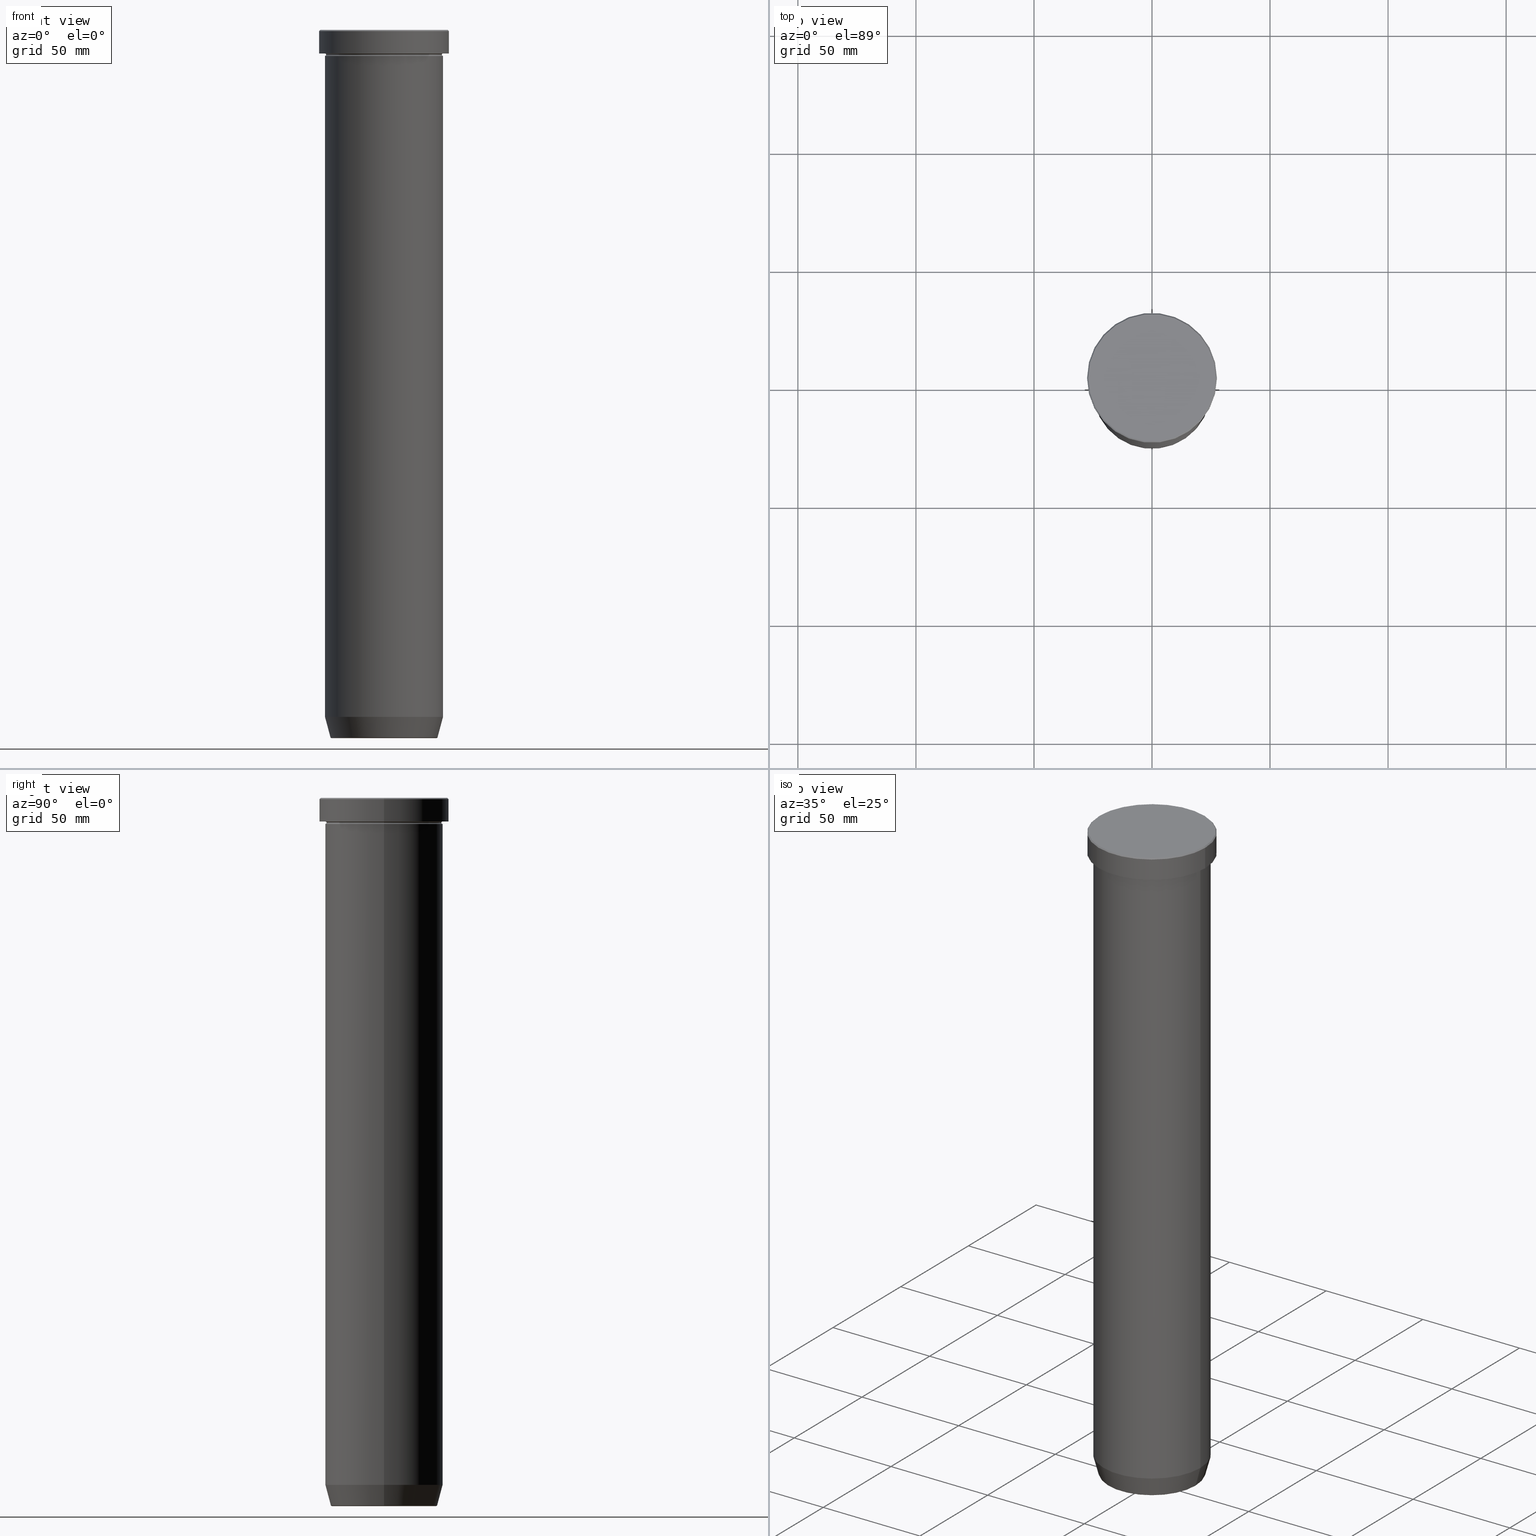
[diagram: canonical four-view strip — front | top / right | iso, engineering-drawing reading convention]
A machine part, canonical four-view strip (front | top / right | iso — engineering-drawing reading convention). The complete STEP part file that produces these views, byte-faithful:
ISO-10303-21;
HEADER;
FILE_DESCRIPTION (( 'STEP AP203' ),
    '1' );
FILE_NAME ('7b36.STEP',
    '2024-01-02T17:32:23',
    ( '' ),
    ( '' ),
    'SwSTEP 2.0',
    'SolidWorks 2019',
    '' );
FILE_SCHEMA (( 'CONFIG_CONTROL_DESIGN' ));
ENDSEC;

DATA;
#1 = VECTOR ( 'NONE', #120, 1000.000000000000000 ) ;
#2 = ORIENTED_EDGE ( 'NONE', *, *, #506, .T. ) ;
#3 = DIRECTION ( 'NONE',  ( 0.000000000000000000, -0.000000000000000000, 1.000000000000000000 ) ) ;
#4 = DESIGN_CONTEXT ( 'detailed design', #411, 'design' ) ;
#5 = CARTESIAN_POINT ( 'NONE',  ( 22.58845726811988897, 0.000000000000000000, -300.0000000000000000 ) ) ;
#6 = VERTEX_POINT ( 'NONE', #210 ) ;
#7 = DIRECTION ( 'NONE',  ( -0.000000000000000000, -0.000000000000000000, 1.000000000000000000 ) ) ;
#8 = CARTESIAN_POINT ( 'NONE',  ( 0.000000000000000000, 0.000000000000000000, -300.0000000000000000 ) ) ;
#9 = PERSON ( 'NEUR�EN�', 'NEUR�EN�', 'NEUR�EN�', ('NEUR�EN�'), ('NEUR�EN�'), ('NEUR�EN�') ) ;
#10 = CARTESIAN_POINT ( 'NONE',  ( -25.00000000000000000, 3.061616997868383043E-15, -291.0000000000000000 ) ) ;
#11 = CIRCLE ( 'NONE', #142, 25.00000000000000000 ) ;
#12 = ORIENTED_EDGE ( 'NONE', *, *, #169, .F. ) ;
#13 = AXIS2_PLACEMENT_3D ( 'NONE', #182, #138, #311 ) ;
#14 = PRODUCT ( '7b36', '7b36', '', ( #493 ) ) ;
#15 = APPROVAL_DATE_TIME ( #598, #481 ) ;
#16 = EDGE_CURVE ( 'NONE', #34, #361, #244, .T. ) ;
#17 = CIRCLE ( 'NONE', #319, 25.00000000000000000 ) ;
#18 = FACE_OUTER_BOUND ( 'NONE', #70, .T. ) ;
#19 = ADVANCED_FACE ( 'NONE', ( #101 ), #521, .F. ) ;
#20 = ORIENTED_EDGE ( 'NONE', *, *, #316, .F. ) ;
#21 = CARTESIAN_POINT ( 'NONE',  ( 22.20479377413040822, 0.000000000000000000, -299.5000000000000000 ) ) ;
#22 = AXIS2_PLACEMENT_3D ( 'NONE', #230, #83, #456 ) ;
#23 = ORIENTED_EDGE ( 'NONE', *, *, #123, .T. ) ;
#24 = CIRCLE ( 'NONE', #195, 25.00000000000000000 ) ;
#25 = CIRCLE ( 'NONE', #51, 22.68775668727494477 ) ;
#26 = APPROVAL_PERSON_ORGANIZATION ( #143, #481, #39 ) ;
#27 = ORIENTED_EDGE ( 'NONE', *, *, #433, .T. ) ;
#28 = CARTESIAN_POINT ( 'NONE',  ( 0.000000000000000000, 0.000000000000000000, -299.5000000000000000 ) ) ;
#29 = FACE_OUTER_BOUND ( 'NONE', #165, .T. ) ;
#30 = CARTESIAN_POINT ( 'NONE',  ( 0.000000000000000000, 0.000000000000000000, -300.0000000000000000 ) ) ;
#31 = DIRECTION ( 'NONE',  ( -1.000000000000000000, 1.224646799147349509E-16, 0.000000000000000000 ) ) ;
#32 = VECTOR ( 'NONE', #538, 1000.000000000000000 ) ;
#33 = PERSON_AND_ORGANIZATION ( #9, #346 ) ;
#34 = VERTEX_POINT ( 'NONE', #470 ) ;
#35 = LINE ( 'NONE', #227, #477 ) ;
#36 = DATE_TIME_ROLE ( 'classification_date' ) ;
#37 = DIRECTION ( 'NONE',  ( 0.000000000000000000, 0.000000000000000000, -1.000000000000000000 ) ) ;
#38 = EDGE_CURVE ( 'NONE', #432, #240, #17, .T. ) ;
#39 = APPROVAL_ROLE ( '' ) ;
#40 = CARTESIAN_POINT ( 'NONE',  ( 27.50000000000000000, 0.000000000000000000, 0.000000000000000000 ) ) ;
#41 =( NAMED_UNIT ( * ) PLANE_ANGLE_UNIT ( ) SI_UNIT ( $, .RADIAN. ) );
#42 = AXIS2_PLACEMENT_3D ( 'NONE', #21, #204, #170 ) ;
#43 = CARTESIAN_POINT ( 'NONE',  ( 25.00000000000000000, 0.000000000000000000, 0.000000000000000000 ) ) ;
#44 = ORIENTED_EDGE ( 'NONE', *, *, #169, .T. ) ;
#45 = DIRECTION ( 'NONE',  ( 1.000000000000000000, 0.000000000000000000, 0.000000000000000000 ) ) ;
#46 = ORIENTED_EDGE ( 'NONE', *, *, #333, .T. ) ;
#47 = FACE_OUTER_BOUND ( 'NONE', #264, .T. ) ;
#48 = APPROVAL_STATUS ( 'not_yet_approved' ) ;
#49 = PLANE ( 'NONE',  #289 ) ;
#50 = EDGE_CURVE ( 'NONE', #171, #387, #73, .T. ) ;
#51 = AXIS2_PLACEMENT_3D ( 'NONE', #495, #400, #454 ) ;
#52 = CALENDAR_DATE ( 2024, 2, 1 ) ;
#53 = CARTESIAN_POINT ( 'NONE',  ( 0.000000000000000000, 3.061616997868383121E-14, -300.0000000000000000 ) ) ;
#54 = DIRECTION ( 'NONE',  ( -0.000000000000000000, -0.000000000000000000, 1.000000000000000000 ) ) ;
#55 = APPROVAL_DATE_TIME ( #285, #313 ) ;
#56 = DIRECTION ( 'NONE',  ( -0.000000000000000000, -0.000000000000000000, 1.000000000000000000 ) ) ;
#57 = ORIENTED_EDGE ( 'NONE', *, *, #183, .F. ) ;
#58 = DIRECTION ( 'NONE',  ( 1.000000000000000000, 0.000000000000000000, 0.000000000000000000 ) ) ;
#59 = ADVANCED_FACE ( 'NONE', ( #404 ), #224, .T. ) ;
#60 = AXIS2_PLACEMENT_3D ( 'NONE', #532, #121, #220 ) ;
#61 = APPROVAL_PERSON_ORGANIZATION ( #518, #313, #473 ) ;
#62 = ORIENTED_EDGE ( 'NONE', *, *, #98, .T. ) ;
#63 = DIRECTION ( 'NONE',  ( 1.000000000000000000, 0.000000000000000000, 0.000000000000000000 ) ) ;
#64 = ORIENTED_EDGE ( 'NONE', *, *, #587, .T. ) ;
#65 = FACE_OUTER_BOUND ( 'NONE', #108, .T. ) ;
#66 = AXIS2_PLACEMENT_3D ( 'NONE', #560, #216, #581 ) ;
#67 = CC_DESIGN_APPROVAL ( #313, ( #585 ) ) ;
#68 = VERTEX_POINT ( 'NONE', #172 ) ;
#69 = CARTESIAN_POINT ( 'NONE',  ( 26.99999999999999289, 3.337162527676537126E-15, 0.000000000000000000 ) ) ;
#70 = EDGE_LOOP ( 'NONE', ( #335, #571, #580, #559 ) ) ;
#71 = CARTESIAN_POINT ( 'NONE',  ( 0.000000000000000000, 0.000000000000000000, -60.00000000000000000 ) ) ;
#72 = CALENDAR_DATE ( 2024, 2, 1 ) ;
#73 = CIRCLE ( 'NONE', #449, 25.00000000000000000 ) ;
#74 = DIRECTION ( 'NONE',  ( -0.000000000000000000, -0.000000000000000000, 1.000000000000000000 ) ) ;
#75 = CARTESIAN_POINT ( 'NONE',  ( 0.000000000000000000, 0.000000000000000000, -299.6294095225512137 ) ) ;
#76 = CARTESIAN_POINT ( 'NONE',  ( 0.000000000000000000, 27.50000000000000000, -9.999999999999998224 ) ) ;
#77 = DIRECTION ( 'NONE',  ( 0.000000000000000000, 0.000000000000000000, -1.000000000000000000 ) ) ;
#78 = AXIS2_PLACEMENT_3D ( 'NONE', #75, #269, #225 ) ;
#79 = CARTESIAN_POINT ( 'NONE',  ( 0.000000000000000000, 0.000000000000000000, 0.000000000000000000 ) ) ;
#80 = DIRECTION ( 'NONE',  ( 0.000000000000000000, 0.000000000000000000, -1.000000000000000000 ) ) ;
#81 = EDGE_CURVE ( 'NONE', #573, #403, #588, .T. ) ;
#82 = CARTESIAN_POINT ( 'NONE',  ( 0.000000000000000000, 0.000000000000000000, -10.49999999999999822 ) ) ;
#83 = DIRECTION ( 'NONE',  ( -0.000000000000000000, -0.000000000000000000, 1.000000000000000000 ) ) ;
#84 = LINE ( 'NONE', #457, #413 ) ;
#85 = DATE_AND_TIME ( #72, #282 ) ;
#86 = FACE_OUTER_BOUND ( 'NONE', #478, .T. ) ;
#87 = ADVANCED_FACE ( 'NONE', ( #148 ), #508, .T. ) ;
#88 = ORIENTED_EDGE ( 'NONE', *, *, #336, .F. ) ;
#89 = CALENDAR_DATE ( 2024, 2, 1 ) ;
#90 = CIRCLE ( 'NONE', #368, 27.50000000000000000 ) ;
#91 = DIRECTION ( 'NONE',  ( -1.000000000000000000, 0.000000000000000000, -0.000000000000000000 ) ) ;
#92 = CARTESIAN_POINT ( 'NONE',  ( 0.000000000000000000, 0.000000000000000000, -9.999999999999998224 ) ) ;
#93 = ADVANCED_FACE ( 'NONE', ( #258 ), #352, .T. ) ;
#94 = ADVANCED_FACE ( 'NONE', ( #18 ), #137, .T. ) ;
#95 = CYLINDRICAL_SURFACE ( 'NONE', #397, 25.00000000000000000 ) ;
#96 = ADVANCED_FACE ( 'NONE', ( #105 ), #363, .T. ) ;
#97 = CARTESIAN_POINT ( 'NONE',  ( 25.00000000000000000, 3.061616997868383043E-15, -10.49999999999999822 ) ) ;
#98 = EDGE_CURVE ( 'NONE', #432, #484, #250, .T. ) ;
#99 = DIRECTION ( 'NONE',  ( 0.000000000000000000, -0.000000000000000000, 1.000000000000000000 ) ) ;
#100 = AXIS2_PLACEMENT_3D ( 'NONE', #434, #294, #58 ) ;
#101 = FACE_OUTER_BOUND ( 'NONE', #300, .T. ) ;
#102 = CARTESIAN_POINT ( 'NONE',  ( 0.000000000000000000, 0.000000000000000000, -291.0000000000000000 ) ) ;
#103 = EDGE_LOOP ( 'NONE', ( #348, #492 ) ) ;
#104 = APPROVAL_STATUS ( 'not_yet_approved' ) ;
#105 = FACE_OUTER_BOUND ( 'NONE', #563, .T. ) ;
#106 = CARTESIAN_POINT ( 'NONE',  ( 0.000000000000000000, 0.000000000000000000, 0.000000000000000000 ) ) ;
#107 = EDGE_CURVE ( 'NONE', #167, #387, #205, .T. ) ;
#108 = EDGE_LOOP ( 'NONE', ( #213, #339, #431, #398 ) ) ;
#109 = AXIS2_PLACEMENT_3D ( 'NONE', #428, #200, #378 ) ;
#110 = ORIENTED_EDGE ( 'NONE', *, *, #489, .T. ) ;
#111 = AXIS2_PLACEMENT_3D ( 'NONE', #562, #197, #556 ) ;
#112 = EDGE_CURVE ( 'NONE', #240, #432, #125, .T. ) ;
#113 = DIRECTION ( 'NONE',  ( -0.000000000000000000, -0.000000000000000000, 1.000000000000000000 ) ) ;
#114 = COORDINATED_UNIVERSAL_TIME_OFFSET ( 1, 0, .AHEAD. ) ;
#115 = CIRCLE ( 'NONE', #246, 27.50000000000000000 ) ;
#116 = CARTESIAN_POINT ( 'NONE',  ( 0.000000000000000000, 0.000000000000000000, -10.49999999999999822 ) ) ;
#117 = CARTESIAN_POINT ( 'NONE',  ( 0.000000000000000000, 0.000000000000000000, -11.00000000000000000 ) ) ;
#118 = ORIENTED_EDGE ( 'NONE', *, *, #553, .F. ) ;
#119 = CARTESIAN_POINT ( 'NONE',  ( -22.58845726811988897, 2.766288189107978730E-15, -300.0000000000000000 ) ) ;
#120 = DIRECTION ( 'NONE',  ( 0.7071067811865426878, 8.659560562354874926E-17, -0.7071067811865524577 ) ) ;
#121 = DIRECTION ( 'NONE',  ( -0.000000000000000000, -0.000000000000000000, 1.000000000000000000 ) ) ;
#122 = MANIFOLD_SOLID_BREP ( 'Zaoblit4', #410 ) ;
#123 = EDGE_CURVE ( 'NONE', #573, #171, #189, .T. ) ;
#124 = DIRECTION ( 'NONE',  ( 1.000000000000000000, 0.000000000000000000, 0.000000000000000000 ) ) ;
#125 = CIRCLE ( 'NONE', #22, 25.00000000000000000 ) ;
#126 = DIRECTION ( 'NONE',  ( -1.000000000000000000, 0.000000000000000000, 0.000000000000000000 ) ) ;
#127 = CIRCLE ( 'NONE', #583, 27.50000000000000000 ) ;
#128 = PRODUCT_DEFINITION_FORMATION_WITH_SPECIFIED_SOURCE ( 'LIBOVOLN�', '', #14, .NOT_KNOWN. ) ;
#129 = COORDINATED_UNIVERSAL_TIME_OFFSET ( 1, 0, .AHEAD. ) ;
#130 = ADVANCED_FACE ( 'NONE', ( #242 ), #49, .F. ) ;
#131 = APPLICATION_PROTOCOL_DEFINITION ( 'international standard', 'config_control_design', 1994, #411 ) ;
#132 = FACE_OUTER_BOUND ( 'NONE', #267, .T. ) ;
#133 = VERTEX_POINT ( 'NONE', #544 ) ;
#134 = COORDINATED_UNIVERSAL_TIME_OFFSET ( 1, 0, .AHEAD. ) ;
#135 = DATE_AND_TIME ( #273, #525 ) ;
#136 = CC_DESIGN_PERSON_AND_ORGANIZATION_ASSIGNMENT ( #270, #500, ( #128 ) ) ;
#137 = TOROIDAL_SURFACE ( 'NONE', #482, 22.20479377413040822, 0.5000000000000000000 ) ;
#138 = DIRECTION ( 'NONE',  ( 0.000000000000000000, 0.000000000000000000, 1.000000000000000000 ) ) ;
#139 = LINE ( 'NONE', #321, #1 ) ;
#140 = EDGE_LOOP ( 'NONE', ( #567, #46, #303, #575 ) ) ;
#141 = DIRECTION ( 'NONE',  ( 1.000000000000000000, 0.000000000000000000, 0.000000000000000000 ) ) ;
#142 = AXIS2_PLACEMENT_3D ( 'NONE', #558, #199, #376 ) ;
#143 = PERSON_AND_ORGANIZATION ( #9, #346 ) ;
#144 = DIRECTION ( 'NONE',  ( -0.000000000000000000, -1.000000000000000000, -0.000000000000000000 ) ) ;
#145 = EDGE_LOOP ( 'NONE', ( #480, #44 ) ) ;
#146 = LINE ( 'NONE', #462, #537 ) ;
#147 = CARTESIAN_POINT ( 'NONE',  ( 24.50000000000000000, 0.000000000000000000, -10.49999999999999822 ) ) ;
#148 = FACE_OUTER_BOUND ( 'NONE', #208, .T. ) ;
#149 = PLANE ( 'NONE',  #459 ) ;
#150 = AXIS2_PLACEMENT_3D ( 'NONE', #8, #439, #203 ) ;
#151 = DIRECTION ( 'NONE',  ( 1.000000000000000000, 0.000000000000000000, 0.000000000000000000 ) ) ;
#152 = DIRECTION ( 'NONE',  ( -1.000000000000000000, 0.000000000000000000, 0.000000000000000000 ) ) ;
#153 = DIRECTION ( 'NONE',  ( -0.000000000000000000, -0.000000000000000000, 1.000000000000000000 ) ) ;
#154 = FACE_OUTER_BOUND ( 'NONE', #531, .T. ) ;
#155 = CIRCLE ( 'NONE', #100, 24.50000000000000000 ) ;
#156 = CARTESIAN_POINT ( 'NONE',  ( 0.000000000000000000, 0.000000000000000000, -11.00000000000000000 ) ) ;
#157 = DIRECTION ( 'NONE',  ( -0.000000000000000000, -0.000000000000000000, 1.000000000000000000 ) ) ;
#158 = ADVANCED_FACE ( 'NONE', ( #417 ), #211, .F. ) ;
#159 = FACE_OUTER_BOUND ( 'NONE', #302, .T. ) ;
#160 = ORIENTED_EDGE ( 'NONE', *, *, #523, .F. ) ;
#161 = ORIENTED_EDGE ( 'NONE', *, *, #192, .F. ) ;
#162 = EDGE_CURVE ( 'NONE', #167, #34, #291, .T. ) ;
#163 = APPLICATION_CONTEXT ( 'configuration controlled 3d designs of mechanical parts and assemblies' ) ;
#164 = TOROIDAL_SURFACE ( 'NONE', #271, 25.00000000000000000, 0.5000000000000000000 ) ;
#165 = EDGE_LOOP ( 'NONE', ( #118, #594, #64, #332 ) ) ;
#166 = ADVANCED_FACE ( 'NONE', ( #132 ), #590, .T. ) ;
#167 = VERTEX_POINT ( 'NONE', #497 ) ;
#168 = DIRECTION ( 'NONE',  ( 0.000000000000000000, 0.000000000000000000, -1.000000000000000000 ) ) ;
#169 = EDGE_CURVE ( 'NONE', #328, #330, #458, .T. ) ;
#170 = DIRECTION ( 'NONE',  ( 0.000000000000000000, 0.000000000000000000, -1.000000000000000000 ) ) ;
#171 = VERTEX_POINT ( 'NONE', #469 ) ;
#172 = CARTESIAN_POINT ( 'NONE',  ( 27.50000000000000000, 0.000000000000000000, -9.999999999999998224 ) ) ;
#173 = ORIENTED_EDGE ( 'NONE', *, *, #343, .T. ) ;
#174 = DIRECTION ( 'NONE',  ( -1.000000000000000000, 0.000000000000000000, 0.000000000000000000 ) ) ;
#175 = AXIS2_PLACEMENT_3D ( 'NONE', #262, #196, #370 ) ;
#176 = DIRECTION ( 'NONE',  ( 1.000000000000000000, 0.000000000000000000, 0.000000000000000000 ) ) ;
#177 = VERTEX_POINT ( 'NONE', #570 ) ;
#178 = PERSON_AND_ORGANIZATION ( #9, #346 ) ;
#179 = PERSON_AND_ORGANIZATION ( #9, #346 ) ;
#180 = DIRECTION ( 'NONE',  ( -0.000000000000000000, -0.000000000000000000, 1.000000000000000000 ) ) ;
#181 = LINE ( 'NONE', #119, #395 ) ;
#182 = CARTESIAN_POINT ( 'NONE',  ( 0.000000000000000000, 0.000000000000000000, 0.000000000000000000 ) ) ;
#183 = EDGE_CURVE ( 'NONE', #361, #34, #534, .T. ) ;
#184 = CARTESIAN_POINT ( 'NONE',  ( 0.000000000000000000, 0.000000000000000000, 0.000000000000000000 ) ) ;
#185 = CIRCLE ( 'NONE', #238, 0.5000000000000004441 ) ;
#186 = DIRECTION ( 'NONE',  ( -0.000000000000000000, -0.000000000000000000, 1.000000000000000000 ) ) ;
#187 = CARTESIAN_POINT ( 'NONE',  ( -25.00000000000000000, 0.000000000000000000, -10.49999999999999822 ) ) ;
#188 = ORIENTED_EDGE ( 'NONE', *, *, #333, .F. ) ;
#189 = LINE ( 'NONE', #43, #466 ) ;
#190 = ORIENTED_EDGE ( 'NONE', *, *, #523, .T. ) ;
#191 = CARTESIAN_POINT ( 'NONE',  ( 25.00000000000000000, 3.061616997868383043E-15, -9.999999999999998224 ) ) ;
#192 = EDGE_CURVE ( 'NONE', #256, #177, #90, .T. ) ;
#193 = DIRECTION ( 'NONE',  ( -0.000000000000000000, -0.000000000000000000, 1.000000000000000000 ) ) ;
#194 = DIRECTION ( 'NONE',  ( 1.000000000000000000, 0.000000000000000000, 0.000000000000000000 ) ) ;
#195 = AXIS2_PLACEMENT_3D ( 'NONE', #446, #193, #141 ) ;
#196 = DIRECTION ( 'NONE',  ( -0.000000000000000000, -0.000000000000000000, 1.000000000000000000 ) ) ;
#197 = DIRECTION ( 'NONE',  ( 0.000000000000000000, -1.000000000000000000, 0.000000000000000000 ) ) ;
#198 = UNCERTAINTY_MEASURE_WITH_UNIT (LENGTH_MEASURE( 1.000000000000000082E-05 ), #362, 'distance_accuracy_value', 'NONE');
#199 = DIRECTION ( 'NONE',  ( -0.000000000000000000, -0.000000000000000000, 1.000000000000000000 ) ) ;
#200 = DIRECTION ( 'NONE',  ( -0.000000000000000000, -0.000000000000000000, 1.000000000000000000 ) ) ;
#201 = CARTESIAN_POINT ( 'NONE',  ( 0.000000000000000000, 0.000000000000000000, 0.000000000000000000 ) ) ;
#202 = ORIENTED_EDGE ( 'NONE', *, *, #320, .T. ) ;
#203 = DIRECTION ( 'NONE',  ( 1.000000000000000000, 0.000000000000000000, 0.000000000000000000 ) ) ;
#204 = DIRECTION ( 'NONE',  ( 0.000000000000000000, -1.000000000000000000, 0.000000000000000000 ) ) ;
#205 = CIRCLE ( 'NONE', #382, 0.5000000000000004441 ) ;
#206 = CIRCLE ( 'NONE', #66, 22.20479377413040822 ) ;
#207 = PERSON_AND_ORGANIZATION ( #9, #346 ) ;
#208 = EDGE_LOOP ( 'NONE', ( #249, #472, #62, #507 ) ) ;
#209 = ORIENTED_EDGE ( 'NONE', *, *, #424, .F. ) ;
#210 = CARTESIAN_POINT ( 'NONE',  ( -25.00000000000000000, 3.061616997868383043E-15, -60.00000000000000000 ) ) ;
#211 = TOROIDAL_SURFACE ( 'NONE', #541, 25.00000000000000000, 0.5000000000000000000 ) ;
#212 = AXIS2_PLACEMENT_3D ( 'NONE', #223, #37, #406 ) ;
#213 = ORIENTED_EDGE ( 'NONE', *, *, #325, .F. ) ;
#214 = APPROVAL_PERSON_ORGANIZATION ( #33, #440, #409 ) ;
#215 = ORIENTED_EDGE ( 'NONE', *, *, #388, .T. ) ;
#216 = DIRECTION ( 'NONE',  ( 0.000000000000000000, 0.000000000000000000, -1.000000000000000000 ) ) ;
#217 = CC_DESIGN_PERSON_AND_ORGANIZATION_ASSIGNMENT ( #178, #529, ( #585 ) ) ;
#218 = CARTESIAN_POINT ( 'NONE',  ( -22.68775668727494477, 2.920032929279452187E-15, -299.6294095225512137 ) ) ;
#219 = ORIENTED_EDGE ( 'NONE', *, *, #437, .F. ) ;
#220 = DIRECTION ( 'NONE',  ( 1.000000000000000000, 0.000000000000000000, 0.000000000000000000 ) ) ;
#221 = AXIS2_PLACEMENT_3D ( 'NONE', #97, #257, #514 ) ;
#222 = EDGE_CURVE ( 'NONE', #133, #432, #327, .T. ) ;
#223 = CARTESIAN_POINT ( 'NONE',  ( 0.000000000000000000, 0.000000000000000000, 0.000000000000000000 ) ) ;
#224 = PLANE ( 'NONE',  #391 ) ;
#225 = DIRECTION ( 'NONE',  ( -1.000000000000000000, 0.000000000000000000, 0.000000000000000000 ) ) ;
#226 = DIRECTION ( 'NONE',  ( -1.000000000000000000, 0.000000000000000000, -0.000000000000000000 ) ) ;
#227 = CARTESIAN_POINT ( 'NONE',  ( -25.00000000000000000, 3.061616997868383043E-15, 0.000000000000000000 ) ) ;
#228 = PERSON_AND_ORGANIZATION ( #9, #346 ) ;
#229 = CC_DESIGN_DATE_AND_TIME_ASSIGNMENT ( #85, #349, ( #539 ) ) ;
#230 = CARTESIAN_POINT ( 'NONE',  ( 0.000000000000000000, 0.000000000000000000, -291.0000000000000000 ) ) ;
#231 = CARTESIAN_POINT ( 'NONE',  ( -26.99999999999999289, 0.000000000000000000, 0.000000000000000000 ) ) ;
#232 = PLANE ( 'NONE',  #405 ) ;
#233 = APPROVAL_DATE_TIME ( #310, #440 ) ;
#234 = CARTESIAN_POINT ( 'NONE',  ( -26.99999999999999289, 0.000000000000000000, 0.000000000000000000 ) ) ;
#235 = DIRECTION ( 'NONE',  ( 0.000000000000000000, 0.000000000000000000, -1.000000000000000000 ) ) ;
#236 = CARTESIAN_POINT ( 'NONE',  ( -22.20479377413040822, 2.748875911406054788E-15, -300.0000000000000000 ) ) ;
#237 = AXIS2_PLACEMENT_3D ( 'NONE', #277, #239, #323 ) ;
#238 = AXIS2_PLACEMENT_3D ( 'NONE', #535, #450, #31 ) ;
#239 = DIRECTION ( 'NONE',  ( -0.000000000000000000, -0.000000000000000000, 1.000000000000000000 ) ) ;
#240 = VERTEX_POINT ( 'NONE', #10 ) ;
#241 = DIRECTION ( 'NONE',  ( 1.000000000000000000, 0.000000000000000000, 0.000000000000000000 ) ) ;
#242 = FACE_OUTER_BOUND ( 'NONE', #453, .T. ) ;
#243 = FACE_BOUND ( 'NONE', #103, .T. ) ;
#244 = CIRCLE ( 'NONE', #578, 25.00000000000000000 ) ;
#245 = DIRECTION ( 'NONE',  ( -0.7071067811865426878, 0.000000000000000000, -0.7071067811865524577 ) ) ;
#246 = AXIS2_PLACEMENT_3D ( 'NONE', #353, #402, #586 ) ;
#247 = EDGE_LOOP ( 'NONE', ( #295, #564 ) ) ;
#248 = EDGE_CURVE ( 'NONE', #387, #171, #444, .T. ) ;
#249 = ORIENTED_EDGE ( 'NONE', *, *, #593, .F. ) ;
#250 = LINE ( 'NONE', #379, #565 ) ;
#251 = PLANE ( 'NONE',  #281 ) ;
#252 = DIRECTION ( 'NONE',  ( 1.000000000000000000, 0.000000000000000000, 0.000000000000000000 ) ) ;
#253 = VERTEX_POINT ( 'NONE', #487 ) ;
#254 = DIRECTION ( 'NONE',  ( -0.000000000000000000, -0.000000000000000000, 1.000000000000000000 ) ) ;
#255 = AXIS2_PLACEMENT_3D ( 'NONE', #582, #180, #176 ) ;
#256 = VERTEX_POINT ( 'NONE', #329 ) ;
#257 = DIRECTION ( 'NONE',  ( -1.224646799147353207E-16, 1.000000000000000000, 0.000000000000000000 ) ) ;
#258 = FACE_OUTER_BOUND ( 'NONE', #140, .T. ) ;
#259 = CYLINDRICAL_SURFACE ( 'NONE', #60, 25.00000000000000000 ) ;
#260 = ORIENTED_EDGE ( 'NONE', *, *, #316, .T. ) ;
#261 = TOROIDAL_SURFACE ( 'NONE', #568, 25.00000000000000000, 0.5000000000000000000 ) ;
#262 = CARTESIAN_POINT ( 'NONE',  ( 0.000000000000000000, 0.000000000000000000, 0.000000000000000000 ) ) ;
#263 = ADVANCED_FACE ( 'NONE', ( #483 ), #574, .T. ) ;
#264 = EDGE_LOOP ( 'NONE', ( #215, #503 ) ) ;
#265 = FACE_OUTER_BOUND ( 'NONE', #519, .T. ) ;
#266 = PERSON_AND_ORGANIZATION_ROLE ( 'creator' ) ;
#267 = EDGE_LOOP ( 'NONE', ( #188, #279, #447, #461 ) ) ;
#268 = DIRECTION ( 'NONE',  ( -0.000000000000000000, -0.000000000000000000, 1.000000000000000000 ) ) ;
#269 = DIRECTION ( 'NONE',  ( -0.000000000000000000, -0.000000000000000000, 1.000000000000000000 ) ) ;
#270 = PERSON_AND_ORGANIZATION ( #9, #346 ) ;
#271 = AXIS2_PLACEMENT_3D ( 'NONE', #360, #80, #547 ) ;
#272 = CC_DESIGN_PERSON_AND_ORGANIZATION_ASSIGNMENT ( #228, #451, ( #14 ) ) ;
#273 = CALENDAR_DATE ( 2024, 2, 1 ) ;
#274 = EDGE_CURVE ( 'NONE', #548, #317, #185, .T. ) ;
#275 = DIRECTION ( 'NONE',  ( 1.000000000000000000, 0.000000000000000000, 0.000000000000000000 ) ) ;
#276 =( NAMED_UNIT ( * ) SI_UNIT ( $, .STERADIAN. ) SOLID_ANGLE_UNIT ( ) );
#277 = CARTESIAN_POINT ( 'NONE',  ( 0.000000000000000000, 0.000000000000000000, -300.0000000000000000 ) ) ;
#278 = FACE_OUTER_BOUND ( 'NONE', #389, .T. ) ;
#279 = ORIENTED_EDGE ( 'NONE', *, *, #572, .T. ) ;
#280 = AXIS2_PLACEMENT_3D ( 'NONE', #305, #54, #338 ) ;
#281 = AXIS2_PLACEMENT_3D ( 'NONE', #331, #3, #517 ) ;
#282 = LOCAL_TIME ( 18, 32, 23.00000000000000000, #129 ) ;
#283 = DIRECTION ( 'NONE',  ( -0.000000000000000000, -0.000000000000000000, 1.000000000000000000 ) ) ;
#284 = APPLICATION_PROTOCOL_DEFINITION ( 'international standard', 'config_control_design', 1994, #163 ) ;
#285 = DATE_AND_TIME ( #52, #423 ) ;
#286 = DIRECTION ( 'NONE',  ( 1.000000000000000000, 0.000000000000000000, 0.000000000000000000 ) ) ;
#287 = ORIENTED_EDGE ( 'NONE', *, *, #433, .F. ) ;
#288 = ORIENTED_EDGE ( 'NONE', *, *, #192, .T. ) ;
#289 = AXIS2_PLACEMENT_3D ( 'NONE', #546, #235, #91 ) ;
#290 = EDGE_CURVE ( 'NONE', #133, #317, #25, .T. ) ;
#291 = CIRCLE ( 'NONE', #540, 0.5000000000000004441 ) ;
#292 = VECTOR ( 'NONE', #557, 1000.000000000000114 ) ;
#293 = AXIS2_PLACEMENT_3D ( 'NONE', #92, #418, #367 ) ;
#294 = DIRECTION ( 'NONE',  ( -0.000000000000000000, -0.000000000000000000, 1.000000000000000000 ) ) ;
#295 = ORIENTED_EDGE ( 'NONE', *, *, #81, .F. ) ;
#296 = DIRECTION ( 'NONE',  ( -0.000000000000000000, -0.000000000000000000, 1.000000000000000000 ) ) ;
#297 = DIRECTION ( 'NONE',  ( 1.000000000000000000, 0.000000000000000000, 0.000000000000000000 ) ) ;
#298 = CARTESIAN_POINT ( 'NONE',  ( -25.00000000000000711, 3.061616997868383831E-15, -60.00000000000000000 ) ) ;
#299 = CIRCLE ( 'NONE', #435, 24.50000000000000000 ) ;
#300 = EDGE_LOOP ( 'NONE', ( #584, #381, #520, #344 ) ) ;
#301 = ORIENTED_EDGE ( 'NONE', *, *, #336, .T. ) ;
#302 = EDGE_LOOP ( 'NONE', ( #12, #415, #161, #595 ) ) ;
#303 = ORIENTED_EDGE ( 'NONE', *, *, #38, .F. ) ;
#304 = ADVANCED_FACE ( 'NONE', ( #86 ), #261, .F. ) ;
#305 = CARTESIAN_POINT ( 'NONE',  ( 0.000000000000000000, 0.000000000000000000, -9.999999999999998224 ) ) ;
#306 = AXIS2_PLACEMENT_3D ( 'NONE', #28, #113, #307 ) ;
#307 = DIRECTION ( 'NONE',  ( 1.000000000000000000, 0.000000000000000000, 0.000000000000000000 ) ) ;
#308 = DIRECTION ( 'NONE',  ( 1.000000000000000000, 0.000000000000000000, 0.000000000000000000 ) ) ;
#309 = DIRECTION ( 'NONE',  ( 1.000000000000000000, 0.000000000000000000, 0.000000000000000000 ) ) ;
#310 = DATE_AND_TIME ( #533, #592 ) ;
#311 = DIRECTION ( 'NONE',  ( 1.000000000000000000, 0.000000000000000000, 0.000000000000000000 ) ) ;
#312 = ADVANCED_FACE ( 'NONE', ( #29 ), #591, .T. ) ;
#313 = APPROVAL ( #104, 'NEUR�EN�' ) ;
#314 = AXIS2_PLACEMENT_3D ( 'NONE', #156, #56, #516 ) ;
#315 = CC_DESIGN_SECURITY_CLASSIFICATION ( #585, ( #128 ) ) ;
#316 = EDGE_CURVE ( 'NONE', #403, #387, #35, .T. ) ;
#317 = VERTEX_POINT ( 'NONE', #218 ) ;
#318 = ORIENTED_EDGE ( 'NONE', *, *, #162, .T. ) ;
#319 = AXIS2_PLACEMENT_3D ( 'NONE', #102, #296, #576 ) ;
#320 = EDGE_CURVE ( 'NONE', #167, #488, #299, .T. ) ;
#321 = CARTESIAN_POINT ( 'NONE',  ( 26.99999999999999289, 3.306546357697852944E-15, 0.000000000000000000 ) ) ;
#322 = CIRCLE ( 'NONE', #42, 0.5000000000000004441 ) ;
#323 = DIRECTION ( 'NONE',  ( 1.000000000000000000, 0.000000000000000000, 0.000000000000000000 ) ) ;
#324 = MANIFOLD_SOLID_BREP ( 'Zkosen�1', #501 ) ;
#325 = EDGE_CURVE ( 'NONE', #548, #375, #505, .T. ) ;
#326 = CC_DESIGN_PERSON_AND_ORGANIZATION_ASSIGNMENT ( #179, #491, ( #539 ) ) ;
#327 = LINE ( 'NONE', #5, #292 ) ;
#328 = VERTEX_POINT ( 'NONE', #69 ) ;
#329 = CARTESIAN_POINT ( 'NONE',  ( -27.50000000000000000, 3.367778697655221307E-15, -0.5000000000000143219 ) ) ;
#330 = VERTEX_POINT ( 'NONE', #234 ) ;
#331 = CARTESIAN_POINT ( 'NONE',  ( 0.000000000000000000, 0.000000000000000000, 0.000000000000000000 ) ) ;
#332 = ORIENTED_EDGE ( 'NONE', *, *, #343, .F. ) ;
#333 = EDGE_CURVE ( 'NONE', #317, #240, #181, .T. ) ;
#334 = ORIENTED_EDGE ( 'NONE', *, *, #589, .F. ) ;
#335 = ORIENTED_EDGE ( 'NONE', *, *, #274, .F. ) ;
#336 = EDGE_CURVE ( 'NONE', #68, #253, #115, .T. ) ;
#337 = ORIENTED_EDGE ( 'NONE', *, *, #589, .T. ) ;
#338 = DIRECTION ( 'NONE',  ( -1.000000000000000000, 0.000000000000000000, 0.000000000000000000 ) ) ;
#339 = ORIENTED_EDGE ( 'NONE', *, *, #274, .T. ) ;
#340 = EDGE_LOOP ( 'NONE', ( #377, #392, #502, #219 ) ) ;
#341 = SECURITY_CLASSIFICATION_LEVEL ( 'unclassified' ) ;
#342 = EDGE_CURVE ( 'NONE', #330, #328, #542, .T. ) ;
#343 = EDGE_CURVE ( 'NONE', #177, #256, #127, .T. ) ;
#344 = ORIENTED_EDGE ( 'NONE', *, *, #50, .T. ) ;
#345 = AXIS2_PLACEMENT_3D ( 'NONE', #426, #7, #510 ) ;
#346 = ORGANIZATION ( 'NEUR�EN�', 'NEUR�EN�', '' ) ;
#347 = CARTESIAN_POINT ( 'NONE',  ( 0.000000000000000000, 0.000000000000000000, -0.5000000000000143219 ) ) ;
#348 = ORIENTED_EDGE ( 'NONE', *, *, #16, .T. ) ;
#349 = DATE_TIME_ROLE ( 'creation_date' ) ;
#350 = CARTESIAN_POINT ( 'NONE',  ( 0.000000000000000000, 0.000000000000000000, -10.49999999999999822 ) ) ;
#351 = CARTESIAN_POINT ( 'NONE',  ( 25.00000000000000355, 0.000000000000000000, -60.00000000000000000 ) ) ;
#352 = CONICAL_SURFACE ( 'NONE', #150, 22.58845726811988897, 0.2617993877991499074 ) ;
#353 = CARTESIAN_POINT ( 'NONE',  ( 0.000000000000000000, 0.000000000000000000, -9.999999999999998224 ) ) ;
#354 = COORDINATED_UNIVERSAL_TIME_OFFSET ( 1, 0, .AHEAD. ) ;
#355 = CIRCLE ( 'NONE', #221, 0.5000000000000004441 ) ;
#356 = ORIENTED_EDGE ( 'NONE', *, *, #98, .F. ) ;
#357 = DIRECTION ( 'NONE',  ( -0.000000000000000000, -0.000000000000000000, 1.000000000000000000 ) ) ;
#358 = ADVANCED_FACE ( 'NONE', ( #47 ), #149, .F. ) ;
#359 = APPROVAL_STATUS ( 'not_yet_approved' ) ;
#360 = CARTESIAN_POINT ( 'NONE',  ( 0.000000000000000000, 0.000000000000000000, -10.49999999999999822 ) ) ;
#361 = VERTEX_POINT ( 'NONE', #191 ) ;
#362 =( LENGTH_UNIT ( ) NAMED_UNIT ( * ) SI_UNIT ( .MILLI., .METRE. ) );
#363 = CYLINDRICAL_SURFACE ( 'NONE', #555, 27.50000000000000000 ) ;
#364 = AXIS2_PLACEMENT_3D ( 'NONE', #71, #268, #194 ) ;
#365 = DIRECTION ( 'NONE',  ( -0.000000000000000000, -0.000000000000000000, 1.000000000000000000 ) ) ;
#366 = EDGE_LOOP ( 'NONE', ( #88, #334 ) ) ;
#367 = DIRECTION ( 'NONE',  ( 1.000000000000000000, 0.000000000000000000, 0.000000000000000000 ) ) ;
#368 = AXIS2_PLACEMENT_3D ( 'NONE', #554, #509, #151 ) ;
#369 = EDGE_CURVE ( 'NONE', #375, #133, #322, .T. ) ;
#370 = DIRECTION ( 'NONE',  ( 1.000000000000000000, 0.000000000000000000, 0.000000000000000000 ) ) ;
#371 = FACE_OUTER_BOUND ( 'NONE', #522, .T. ) ;
#372 = SHAPE_DEFINITION_REPRESENTATION ( #430, #390 ) ;
#373 = ADVANCED_FACE ( 'NONE', ( #265 ), #259, .T. ) ;
#374 = PRODUCT_RELATED_PRODUCT_CATEGORY ( 'detail', '', ( #14 ) ) ;
#375 = VERTEX_POINT ( 'NONE', #383 ) ;
#376 = DIRECTION ( 'NONE',  ( 1.000000000000000000, 0.000000000000000000, 0.000000000000000000 ) ) ;
#377 = ORIENTED_EDGE ( 'NONE', *, *, #320, .F. ) ;
#378 = DIRECTION ( 'NONE',  ( 1.000000000000000000, 0.000000000000000000, 0.000000000000000000 ) ) ;
#379 = CARTESIAN_POINT ( 'NONE',  ( 25.00000000000000000, 0.000000000000000000, 0.000000000000000000 ) ) ;
#380 = FACE_OUTER_BOUND ( 'NONE', #145, .T. ) ;
#381 = ORIENTED_EDGE ( 'NONE', *, *, #489, .F. ) ;
#382 = AXIS2_PLACEMENT_3D ( 'NONE', #561, #577, #463 ) ;
#383 = CARTESIAN_POINT ( 'NONE',  ( 22.20479377413040822, 0.000000000000000000, -300.0000000000000000 ) ) ;
#384 = CONICAL_SURFACE ( 'NONE', #536, 26.99999999999999289, 0.7853981633974415066 ) ;
#385 = ORIENTED_EDGE ( 'NONE', *, *, #593, .T. ) ;
#386 = DIRECTION ( 'NONE',  ( -0.000000000000000000, -0.000000000000000000, 1.000000000000000000 ) ) ;
#387 = VERTEX_POINT ( 'NONE', #399 ) ;
#388 = EDGE_CURVE ( 'NONE', #375, #548, #206, .T. ) ;
#389 = EDGE_LOOP ( 'NONE', ( #202, #438, #401, #526 ) ) ;
#390 = ADVANCED_BREP_SHAPE_REPRESENTATION ( '7b36', ( #324, #122, #13 ), #498 ) ;
#391 = AXIS2_PLACEMENT_3D ( 'NONE', #490, #168, #485 ) ;
#392 = ORIENTED_EDGE ( 'NONE', *, *, #107, .T. ) ;
#393 = DIRECTION ( 'NONE',  ( -0.000000000000000000, -0.000000000000000000, 1.000000000000000000 ) ) ;
#394 = ORIENTED_EDGE ( 'NONE', *, *, #424, .T. ) ;
#395 = VECTOR ( 'NONE', #448, 1000.000000000000114 ) ;
#396 = ADVANCED_FACE ( 'NONE', ( #159 ), #384, .T. ) ;
#397 = AXIS2_PLACEMENT_3D ( 'NONE', #184, #416, #414 ) ;
#398 = ORIENTED_EDGE ( 'NONE', *, *, #369, .F. ) ;
#399 = CARTESIAN_POINT ( 'NONE',  ( -25.00000000000000000, 3.061616997868383043E-15, -11.00000000000000000 ) ) ;
#400 = DIRECTION ( 'NONE',  ( -0.000000000000000000, -0.000000000000000000, 1.000000000000000000 ) ) ;
#401 = ORIENTED_EDGE ( 'NONE', *, *, #16, .F. ) ;
#402 = DIRECTION ( 'NONE',  ( -0.000000000000000000, -0.000000000000000000, 1.000000000000000000 ) ) ;
#403 = VERTEX_POINT ( 'NONE', #298 ) ;
#404 = FACE_OUTER_BOUND ( 'NONE', #247, .T. ) ;
#405 = AXIS2_PLACEMENT_3D ( 'NONE', #76, #545, #226 ) ;
#406 = DIRECTION ( 'NONE',  ( -1.000000000000000000, 0.000000000000000000, 0.000000000000000000 ) ) ;
#407 = CARTESIAN_POINT ( 'NONE',  ( 25.00000000000000000, 0.000000000000000000, -291.0000000000000000 ) ) ;
#408 = DIRECTION ( 'NONE',  ( -0.000000000000000000, -0.000000000000000000, 1.000000000000000000 ) ) ;
#409 = APPROVAL_ROLE ( '' ) ;
#410 = CLOSED_SHELL ( 'NONE', ( #420, #93, #373, #130, #87, #166, #358, #94 ) ) ;
#411 = APPLICATION_CONTEXT ( 'configuration controlled 3d designs of mechanical parts and assemblies' ) ;
#412 = DIRECTION ( 'NONE',  ( -0.000000000000000000, -0.000000000000000000, 1.000000000000000000 ) ) ;
#413 = VECTOR ( 'NONE', #357, 1000.000000000000000 ) ;
#414 = DIRECTION ( 'NONE',  ( 1.000000000000000000, 0.000000000000000000, 0.000000000000000000 ) ) ;
#415 = ORIENTED_EDGE ( 'NONE', *, *, #553, .T. ) ;
#416 = DIRECTION ( 'NONE',  ( -0.000000000000000000, -0.000000000000000000, 1.000000000000000000 ) ) ;
#417 = FACE_OUTER_BOUND ( 'NONE', #340, .T. ) ;
#418 = DIRECTION ( 'NONE',  ( -0.000000000000000000, -0.000000000000000000, 1.000000000000000000 ) ) ;
#419 = AXIS2_PLACEMENT_3D ( 'NONE', #511, #543, #63 ) ;
#420 = ADVANCED_FACE ( 'NONE', ( #65 ), #467, .T. ) ;
#421 = DIRECTION ( 'NONE',  ( 0.000000000000000000, 0.000000000000000000, -1.000000000000000000 ) ) ;
#422 = VECTOR ( 'NONE', #245, 1000.000000000000000 ) ;
#423 = LOCAL_TIME ( 18, 32, 23.00000000000000000, #465 ) ;
#424 = EDGE_CURVE ( 'NONE', #484, #6, #24, .T. ) ;
#425 = CC_DESIGN_PERSON_AND_ORGANIZATION_ASSIGNMENT ( #207, #266, ( #128 ) ) ;
#426 = CARTESIAN_POINT ( 'NONE',  ( 0.000000000000000000, 0.000000000000000000, -60.00000000000000000 ) ) ;
#427 = ADVANCED_FACE ( 'NONE', ( #243, #551 ), #232, .T. ) ;
#428 = CARTESIAN_POINT ( 'NONE',  ( 0.000000000000000000, 0.000000000000000000, -10.49999999999999822 ) ) ;
#429 = CYLINDRICAL_SURFACE ( 'NONE', #452, 27.50000000000000000 ) ;
#430 = PRODUCT_DEFINITION_SHAPE ( 'NONE', 'NONE',  #539 ) ;
#431 = ORIENTED_EDGE ( 'NONE', *, *, #290, .F. ) ;
#432 = VERTEX_POINT ( 'NONE', #407 ) ;
#433 = EDGE_CURVE ( 'NONE', #253, #256, #84, .T. ) ;
#434 = CARTESIAN_POINT ( 'NONE',  ( 0.000000000000000000, 0.000000000000000000, -10.49999999999999822 ) ) ;
#435 = AXIS2_PLACEMENT_3D ( 'NONE', #116, #186, #275 ) ;
#436 = CC_DESIGN_APPROVAL ( #481, ( #128 ) ) ;
#437 = EDGE_CURVE ( 'NONE', #488, #171, #524, .T. ) ;
#438 = ORIENTED_EDGE ( 'NONE', *, *, #455, .T. ) ;
#439 = DIRECTION ( 'NONE',  ( -0.000000000000000000, -0.000000000000000000, 1.000000000000000000 ) ) ;
#440 = APPROVAL ( #359, 'NEUR�EN�' ) ;
#441 = ORIENTED_EDGE ( 'NONE', *, *, #455, .F. ) ;
#442 = ORIENTED_EDGE ( 'NONE', *, *, #123, .F. ) ;
#443 = AXIS2_PLACEMENT_3D ( 'NONE', #79, #412, #530 ) ;
#444 = CIRCLE ( 'NONE', #314, 25.00000000000000000 ) ;
#445 = CIRCLE ( 'NONE', #293, 27.50000000000000000 ) ;
#446 = CARTESIAN_POINT ( 'NONE',  ( 0.000000000000000000, 0.000000000000000000, -60.00000000000000000 ) ) ;
#447 = ORIENTED_EDGE ( 'NONE', *, *, #222, .T. ) ;
#448 = DIRECTION ( 'NONE',  ( -0.2588190451025211836, 3.169619151431770488E-17, 0.9659258262890680902 ) ) ;
#449 = AXIS2_PLACEMENT_3D ( 'NONE', #117, #74, #309 ) ;
#450 = DIRECTION ( 'NONE',  ( 1.224646799147353207E-16, 1.000000000000000000, 0.000000000000000000 ) ) ;
#451 = PERSON_AND_ORGANIZATION_ROLE ( 'design_owner' ) ;
#452 = AXIS2_PLACEMENT_3D ( 'NONE', #201, #157, #297 ) ;
#453 = EDGE_LOOP ( 'NONE', ( #394, #2 ) ) ;
#454 = DIRECTION ( 'NONE',  ( -1.000000000000000000, 0.000000000000000000, 0.000000000000000000 ) ) ;
#455 = EDGE_CURVE ( 'NONE', #488, #361, #355, .T. ) ;
#456 = DIRECTION ( 'NONE',  ( 1.000000000000000000, 0.000000000000000000, 0.000000000000000000 ) ) ;
#457 = CARTESIAN_POINT ( 'NONE',  ( -27.50000000000000000, 3.367778697655221307E-15, 0.000000000000000000 ) ) ;
#458 = CIRCLE ( 'NONE', #443, 26.99999999999999289 ) ;
#459 = AXIS2_PLACEMENT_3D ( 'NONE', #53, #99, #45 ) ;
#460 = ORIENTED_EDGE ( 'NONE', *, *, #38, .T. ) ;
#461 = ORIENTED_EDGE ( 'NONE', *, *, #112, .F. ) ;
#462 = CARTESIAN_POINT ( 'NONE',  ( -25.00000000000000000, 3.061616997868383043E-15, 0.000000000000000000 ) ) ;
#463 = DIRECTION ( 'NONE',  ( -1.000000000000000000, 1.224646799147349509E-16, 0.000000000000000000 ) ) ;
#464 = CARTESIAN_POINT ( 'NONE',  ( 25.00000000000000000, 0.000000000000000000, -60.00000000000000000 ) ) ;
#465 = COORDINATED_UNIVERSAL_TIME_OFFSET ( 1, 0, .AHEAD. ) ;
#466 = VECTOR ( 'NONE', #283, 1000.000000000000000 ) ;
#467 = TOROIDAL_SURFACE ( 'NONE', #306, 22.20479377413040822, 0.5000000000000000000 ) ;
#468 = LOCAL_TIME ( 18, 32, 23.00000000000000000, #134 ) ;
#469 = CARTESIAN_POINT ( 'NONE',  ( 25.00000000000000000, 0.000000000000000000, -11.00000000000000000 ) ) ;
#470 = CARTESIAN_POINT ( 'NONE',  ( -25.00000000000000000, 0.000000000000000000, -9.999999999999998224 ) ) ;
#471 = LINE ( 'NONE', #40, #32 ) ;
#472 = ORIENTED_EDGE ( 'NONE', *, *, #112, .T. ) ;
#473 = APPROVAL_ROLE ( '' ) ;
#474 = CARTESIAN_POINT ( 'NONE',  ( 0.000000000000000000, 0.000000000000000000, -299.5000000000000000 ) ) ;
#475 = CC_DESIGN_DATE_AND_TIME_ASSIGNMENT ( #135, #36, ( #585 ) ) ;
#476 = ORIENTED_EDGE ( 'NONE', *, *, #50, .F. ) ;
#477 = VECTOR ( 'NONE', #408, 1000.000000000000000 ) ;
#478 = EDGE_LOOP ( 'NONE', ( #441, #110, #318, #57 ) ) ;
#479 = EDGE_LOOP ( 'NONE', ( #528, #260, #476, #442 ) ) ;
#480 = ORIENTED_EDGE ( 'NONE', *, *, #342, .T. ) ;
#481 = APPROVAL ( #48, 'NEUR�EN�' ) ;
#482 = AXIS2_PLACEMENT_3D ( 'NONE', #474, #596, #241 ) ;
#483 = FACE_OUTER_BOUND ( 'NONE', #479, .T. ) ;
#484 = VERTEX_POINT ( 'NONE', #464 ) ;
#485 = DIRECTION ( 'NONE',  ( -1.000000000000000000, 0.000000000000000000, -0.000000000000000000 ) ) ;
#486 = DIRECTION ( 'NONE',  ( 0.000000000000000000, 0.000000000000000000, -1.000000000000000000 ) ) ;
#487 = CARTESIAN_POINT ( 'NONE',  ( -27.50000000000000000, 3.367778697655221307E-15, -9.999999999999998224 ) ) ;
#488 = VERTEX_POINT ( 'NONE', #147 ) ;
#489 = EDGE_CURVE ( 'NONE', #488, #167, #155, .T. ) ;
#490 = CARTESIAN_POINT ( 'NONE',  ( 0.000000000000000000, 25.00000000000000355, -60.00000000000000000 ) ) ;
#491 = PERSON_AND_ORGANIZATION_ROLE ( 'creator' ) ;
#492 = ORIENTED_EDGE ( 'NONE', *, *, #183, .T. ) ;
#493 = MECHANICAL_CONTEXT ( 'NONE', #163, 'mechanical' ) ;
#494 = EDGE_CURVE ( 'NONE', #403, #573, #513, .T. ) ;
#495 = CARTESIAN_POINT ( 'NONE',  ( 0.000000000000000000, 0.000000000000000000, -299.6294095225512137 ) ) ;
#496 = CIRCLE ( 'NONE', #78, 22.68775668727494477 ) ;
#497 = CARTESIAN_POINT ( 'NONE',  ( -24.50000000000000000, 3.031000827889699256E-15, -10.49999999999999822 ) ) ;
#498 =( GEOMETRIC_REPRESENTATION_CONTEXT ( 3 ) GLOBAL_UNCERTAINTY_ASSIGNED_CONTEXT ( ( #198 ) ) GLOBAL_UNIT_ASSIGNED_CONTEXT ( ( #362, #41, #276 ) ) REPRESENTATION_CONTEXT ( 'NONE', 'WORKASPACE' ) );
#499 = LINE ( 'NONE', #231, #422 ) ;
#500 = PERSON_AND_ORGANIZATION_ROLE ( 'design_supplier' ) ;
#501 = CLOSED_SHELL ( 'NONE', ( #396, #550, #158, #263, #96, #59, #504, #515, #427, #597, #19, #304, #312 ) ) ;
#502 = ORIENTED_EDGE ( 'NONE', *, *, #248, .T. ) ;
#503 = ORIENTED_EDGE ( 'NONE', *, *, #325, .T. ) ;
#504 = ADVANCED_FACE ( 'NONE', ( #380 ), #251, .T. ) ;
#505 = CIRCLE ( 'NONE', #552, 22.20479377413040822 ) ;
#506 = EDGE_CURVE ( 'NONE', #6, #484, #11, .T. ) ;
#507 = ORIENTED_EDGE ( 'NONE', *, *, #506, .F. ) ;
#508 = CYLINDRICAL_SURFACE ( 'NONE', #419, 25.00000000000000000 ) ;
#509 = DIRECTION ( 'NONE',  ( 0.000000000000000000, 0.000000000000000000, -1.000000000000000000 ) ) ;
#510 = DIRECTION ( 'NONE',  ( 1.000000000000000000, 0.000000000000000000, 0.000000000000000000 ) ) ;
#511 = CARTESIAN_POINT ( 'NONE',  ( 0.000000000000000000, 0.000000000000000000, 0.000000000000000000 ) ) ;
#512 = DIRECTION ( 'NONE',  ( 0.000000000000000000, 0.000000000000000000, -1.000000000000000000 ) ) ;
#513 = CIRCLE ( 'NONE', #345, 25.00000000000000355 ) ;
#514 = DIRECTION ( 'NONE',  ( -1.000000000000000000, -1.224646799147349509E-16, 0.000000000000000000 ) ) ;
#515 = ADVANCED_FACE ( 'NONE', ( #154 ), #429, .T. ) ;
#516 = DIRECTION ( 'NONE',  ( 1.000000000000000000, 0.000000000000000000, 0.000000000000000000 ) ) ;
#517 = DIRECTION ( 'NONE',  ( 1.000000000000000000, 0.000000000000000000, 0.000000000000000000 ) ) ;
#518 = PERSON_AND_ORGANIZATION ( #9, #346 ) ;
#519 = EDGE_LOOP ( 'NONE', ( #460, #385, #209, #356 ) ) ;
#520 = ORIENTED_EDGE ( 'NONE', *, *, #437, .T. ) ;
#521 = TOROIDAL_SURFACE ( 'NONE', #109, 25.00000000000000000, 0.5000000000000000000 ) ;
#522 = EDGE_LOOP ( 'NONE', ( #20, #527, #23, #599 ) ) ;
#523 = EDGE_CURVE ( 'NONE', #68, #177, #471, .T. ) ;
#524 = CIRCLE ( 'NONE', #111, 0.5000000000000004441 ) ;
#525 = LOCAL_TIME ( 18, 32, 23.00000000000000000, #114 ) ;
#526 = ORIENTED_EDGE ( 'NONE', *, *, #162, .F. ) ;
#527 = ORIENTED_EDGE ( 'NONE', *, *, #494, .T. ) ;
#528 = ORIENTED_EDGE ( 'NONE', *, *, #81, .T. ) ;
#529 = PERSON_AND_ORGANIZATION_ROLE ( 'classification_officer' ) ;
#530 = DIRECTION ( 'NONE',  ( 1.000000000000000000, 0.000000000000000000, 0.000000000000000000 ) ) ;
#531 = EDGE_LOOP ( 'NONE', ( #287, #337, #190, #173 ) ) ;
#532 = CARTESIAN_POINT ( 'NONE',  ( 0.000000000000000000, 0.000000000000000000, 0.000000000000000000 ) ) ;
#533 = CALENDAR_DATE ( 2024, 2, 1 ) ;
#534 = CIRCLE ( 'NONE', #280, 25.00000000000000000 ) ;
#535 = CARTESIAN_POINT ( 'NONE',  ( -22.20479377413040822, 2.719302962121588246E-15, -299.5000000000000000 ) ) ;
#536 = AXIS2_PLACEMENT_3D ( 'NONE', #106, #486, #174 ) ;
#537 = VECTOR ( 'NONE', #254, 1000.000000000000000 ) ;
#538 = DIRECTION ( 'NONE',  ( -0.000000000000000000, -0.000000000000000000, 1.000000000000000000 ) ) ;
#539 = PRODUCT_DEFINITION ( 'NEZN�M�', '', #128, #4 ) ;
#540 = AXIS2_PLACEMENT_3D ( 'NONE', #187, #144, #421 ) ;
#541 = AXIS2_PLACEMENT_3D ( 'NONE', #350, #365, #124 ) ;
#542 = CIRCLE ( 'NONE', #255, 26.99999999999999289 ) ;
#543 = DIRECTION ( 'NONE',  ( -0.000000000000000000, -0.000000000000000000, 1.000000000000000000 ) ) ;
#544 = CARTESIAN_POINT ( 'NONE',  ( 22.68775668727494477, 0.000000000000000000, -299.6294095225512137 ) ) ;
#545 = DIRECTION ( 'NONE',  ( 0.000000000000000000, 0.000000000000000000, -1.000000000000000000 ) ) ;
#546 = CARTESIAN_POINT ( 'NONE',  ( 0.000000000000000000, 0.000000000000000000, -60.00000000000000000 ) ) ;
#547 = DIRECTION ( 'NONE',  ( -1.000000000000000000, 0.000000000000000000, 0.000000000000000000 ) ) ;
#548 = VERTEX_POINT ( 'NONE', #236 ) ;
#549 = CARTESIAN_POINT ( 'NONE',  ( 0.000000000000000000, 0.000000000000000000, 0.000000000000000000 ) ) ;
#550 = ADVANCED_FACE ( 'NONE', ( #278 ), #164, .F. ) ;
#551 = FACE_OUTER_BOUND ( 'NONE', #366, .T. ) ;
#552 = AXIS2_PLACEMENT_3D ( 'NONE', #30, #579, #308 ) ;
#553 = EDGE_CURVE ( 'NONE', #328, #177, #139, .T. ) ;
#554 = CARTESIAN_POINT ( 'NONE',  ( 0.000000000000000000, 0.000000000000000000, -0.5000000000000143219 ) ) ;
#555 = AXIS2_PLACEMENT_3D ( 'NONE', #549, #153, #252 ) ;
#556 = DIRECTION ( 'NONE',  ( 0.000000000000000000, 0.000000000000000000, -1.000000000000000000 ) ) ;
#557 = DIRECTION ( 'NONE',  ( 0.2588190451025211836, 0.000000000000000000, 0.9659258262890680902 ) ) ;
#558 = CARTESIAN_POINT ( 'NONE',  ( 0.000000000000000000, 0.000000000000000000, -60.00000000000000000 ) ) ;
#559 = ORIENTED_EDGE ( 'NONE', *, *, #572, .F. ) ;
#560 = CARTESIAN_POINT ( 'NONE',  ( 0.000000000000000000, 0.000000000000000000, -300.0000000000000000 ) ) ;
#561 = CARTESIAN_POINT ( 'NONE',  ( -25.00000000000000000, 3.061616997868383043E-15, -10.49999999999999822 ) ) ;
#562 = CARTESIAN_POINT ( 'NONE',  ( 25.00000000000000000, 0.000000000000000000, -10.49999999999999822 ) ) ;
#563 = EDGE_LOOP ( 'NONE', ( #301, #27, #288, #160 ) ) ;
#564 = ORIENTED_EDGE ( 'NONE', *, *, #494, .F. ) ;
#565 = VECTOR ( 'NONE', #386, 1000.000000000000000 ) ;
#566 = CARTESIAN_POINT ( 'NONE',  ( 0.000000000000000000, 0.000000000000000000, -9.999999999999998224 ) ) ;
#567 = ORIENTED_EDGE ( 'NONE', *, *, #290, .T. ) ;
#568 = AXIS2_PLACEMENT_3D ( 'NONE', #82, #77, #126 ) ;
#569 = CC_DESIGN_APPROVAL ( #440, ( #539 ) ) ;
#570 = CARTESIAN_POINT ( 'NONE',  ( 27.50000000000000000, 0.000000000000000000, -0.5000000000000143219 ) ) ;
#571 = ORIENTED_EDGE ( 'NONE', *, *, #388, .F. ) ;
#572 = EDGE_CURVE ( 'NONE', #317, #133, #496, .T. ) ;
#573 = VERTEX_POINT ( 'NONE', #351 ) ;
#574 = CYLINDRICAL_SURFACE ( 'NONE', #175, 25.00000000000000000 ) ;
#575 = ORIENTED_EDGE ( 'NONE', *, *, #222, .F. ) ;
#576 = DIRECTION ( 'NONE',  ( 1.000000000000000000, 0.000000000000000000, 0.000000000000000000 ) ) ;
#577 = DIRECTION ( 'NONE',  ( 1.224646799147353207E-16, 1.000000000000000000, 0.000000000000000000 ) ) ;
#578 = AXIS2_PLACEMENT_3D ( 'NONE', #566, #393, #152 ) ;
#579 = DIRECTION ( 'NONE',  ( 0.000000000000000000, 0.000000000000000000, -1.000000000000000000 ) ) ;
#580 = ORIENTED_EDGE ( 'NONE', *, *, #369, .T. ) ;
#581 = DIRECTION ( 'NONE',  ( 1.000000000000000000, 0.000000000000000000, 0.000000000000000000 ) ) ;
#582 = CARTESIAN_POINT ( 'NONE',  ( 0.000000000000000000, 0.000000000000000000, 0.000000000000000000 ) ) ;
#583 = AXIS2_PLACEMENT_3D ( 'NONE', #347, #512, #286 ) ;
#584 = ORIENTED_EDGE ( 'NONE', *, *, #107, .F. ) ;
#585 = SECURITY_CLASSIFICATION ( '', '', #341 ) ;
#586 = DIRECTION ( 'NONE',  ( 1.000000000000000000, 0.000000000000000000, 0.000000000000000000 ) ) ;
#587 = EDGE_CURVE ( 'NONE', #330, #256, #499, .T. ) ;
#588 = CIRCLE ( 'NONE', #364, 25.00000000000000355 ) ;
#589 = EDGE_CURVE ( 'NONE', #253, #68, #445, .T. ) ;
#590 = CONICAL_SURFACE ( 'NONE', #237, 22.58845726811988897, 0.2617993877991499074 ) ;
#591 = CONICAL_SURFACE ( 'NONE', #212, 26.99999999999999289, 0.7853981633974415066 ) ;
#592 = LOCAL_TIME ( 18, 32, 23.00000000000000000, #354 ) ;
#593 = EDGE_CURVE ( 'NONE', #240, #6, #146, .T. ) ;
#594 = ORIENTED_EDGE ( 'NONE', *, *, #342, .F. ) ;
#595 = ORIENTED_EDGE ( 'NONE', *, *, #587, .F. ) ;
#596 = DIRECTION ( 'NONE',  ( -0.000000000000000000, -0.000000000000000000, 1.000000000000000000 ) ) ;
#597 = ADVANCED_FACE ( 'NONE', ( #371 ), #95, .T. ) ;
#598 = DATE_AND_TIME ( #89, #468 ) ;
#599 = ORIENTED_EDGE ( 'NONE', *, *, #248, .F. ) ;
ENDSEC;
END-ISO-10303-21;
